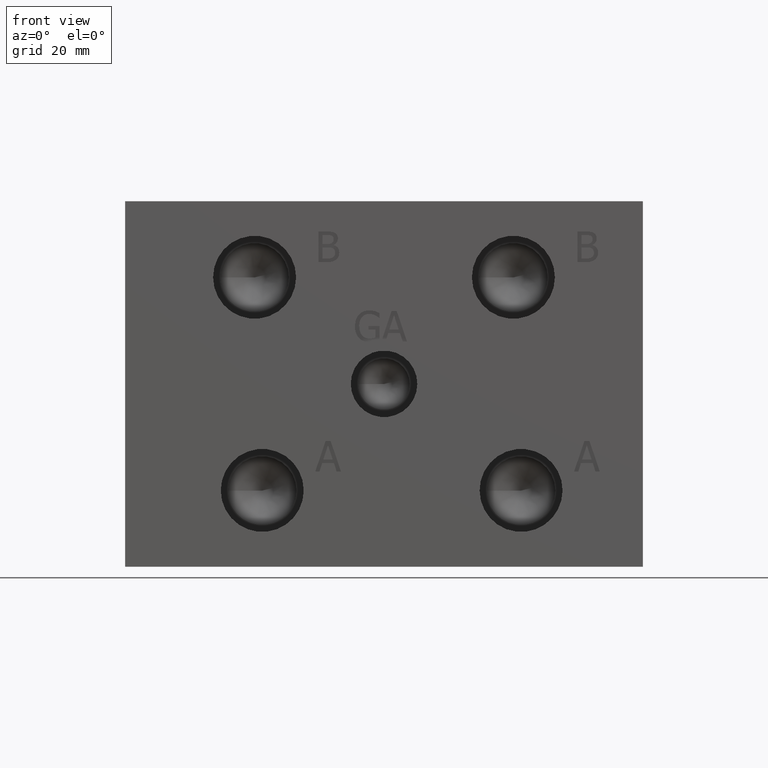
[diagram: clean part render]
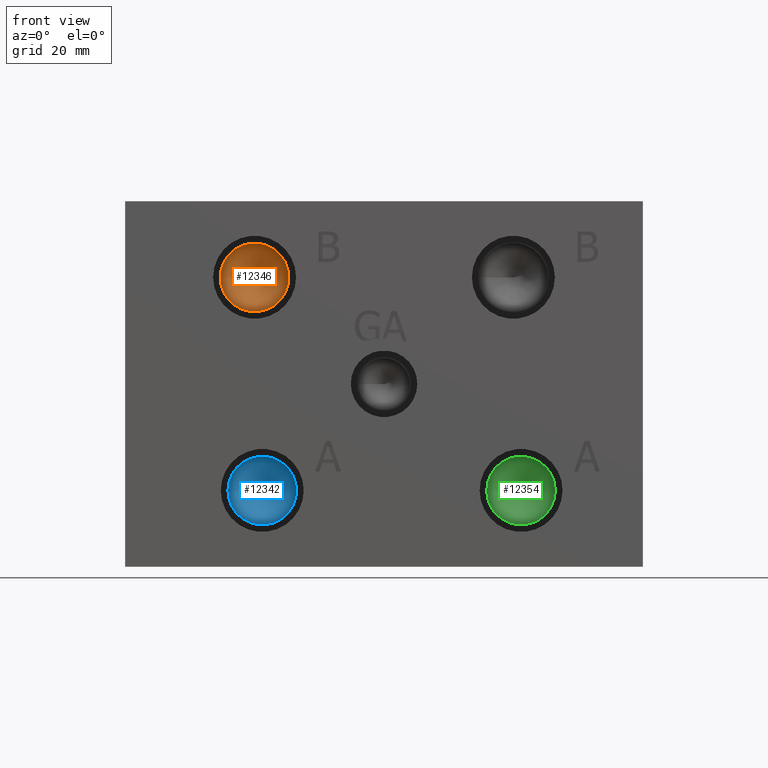
[diagram: same view with three faces highlighted in distinct colors, each labeled with its STEP entity id]
A machine part, front view with three faces highlighted in distinct colors.
Their STEP definitions:

[orange] entity #12346 — the highlighted conical surface has half-angle 60 deg.
#43=CONICAL_SURFACE('',#12995,3.57505,1.0471975511966);
#294=CIRCLE('',#12996,7.1501);
#295=CIRCLE('',#12997,7.1501);
#1388=FACE_OUTER_BOUND('',#2098,.T.);
#2098=EDGE_LOOP('',(#10862,#10863,#10864,#10865));
#3266=LINE('',#21259,#4394);
#4394=VECTOR('',#15376,3.57505);
#5906=VERTEX_POINT('',#21255);
#5907=VERTEX_POINT('',#21256);
#5908=VERTEX_POINT('',#21258);
#7597=EDGE_CURVE('',#5906,#5907,#294,.T.);
#7598=EDGE_CURVE('',#5907,#5908,#3266,.T.);
#7599=EDGE_CURVE('',#5907,#5906,#295,.T.);
#10862=ORIENTED_EDGE('',*,*,#7597,.T.);
#10863=ORIENTED_EDGE('',*,*,#7598,.T.);
#10864=ORIENTED_EDGE('',*,*,#7598,.F.);
#10865=ORIENTED_EDGE('',*,*,#7599,.T.);
#12346=ADVANCED_FACE('',(#1388),#43,.F.);
#12995=AXIS2_PLACEMENT_3D('',#21254,#15372,#15373);
#12996=AXIS2_PLACEMENT_3D('',#21257,#15374,#15375);
#12997=AXIS2_PLACEMENT_3D('',#21260,#15377,#15378);
#15372=DIRECTION('center_axis',(0.,-1.,0.));
#15373=DIRECTION('ref_axis',(1.,0.,0.));
#15374=DIRECTION('center_axis',(0.,-1.,0.));
#15375=DIRECTION('ref_axis',(1.,0.,0.));
#15376=DIRECTION('',(0.866025403784439,0.5,1.06057523872491E-16));
#15377=DIRECTION('center_axis',(0.,-1.,0.));
#15378=DIRECTION('ref_axis',(1.,0.,0.));
#21254=CARTESIAN_POINT('Origin',(26.9748,14.2116660798664,60.325));
#21255=CARTESIAN_POINT('',(34.1249,12.14761,60.325));
#21256=CARTESIAN_POINT('',(19.8247,12.14761,60.325));
#21257=CARTESIAN_POINT('Origin',(26.9748,12.14761,60.325));
#21258=CARTESIAN_POINT('',(26.9748,16.2757221597327,60.325));
#21259=CARTESIAN_POINT('',(23.39975,14.2116660798664,60.325));
#21260=CARTESIAN_POINT('Origin',(26.9748,12.14761,60.325));

[blue] entity #12342 — the highlighted conical surface has half-angle 60 deg.
#42=CONICAL_SURFACE('',#12986,3.57505,1.0471975511966);
#289=CIRCLE('',#12987,7.1501);
#290=CIRCLE('',#12988,7.1501);
#1384=FACE_OUTER_BOUND('',#2093,.T.);
#2093=EDGE_LOOP('',(#10844,#10845,#10846,#10847));
#3263=LINE('',#21241,#4391);
#4391=VECTOR('',#15355,3.57505);
#5900=VERTEX_POINT('',#21237);
#5901=VERTEX_POINT('',#21238);
#5902=VERTEX_POINT('',#21240);
#7589=EDGE_CURVE('',#5900,#5901,#289,.T.);
#7590=EDGE_CURVE('',#5901,#5902,#3263,.T.);
#7591=EDGE_CURVE('',#5901,#5900,#290,.T.);
#10844=ORIENTED_EDGE('',*,*,#7589,.T.);
#10845=ORIENTED_EDGE('',*,*,#7590,.T.);
#10846=ORIENTED_EDGE('',*,*,#7590,.F.);
#10847=ORIENTED_EDGE('',*,*,#7591,.T.);
#12342=ADVANCED_FACE('',(#1384),#42,.F.);
#12986=AXIS2_PLACEMENT_3D('',#21236,#15351,#15352);
#12987=AXIS2_PLACEMENT_3D('',#21239,#15353,#15354);
#12988=AXIS2_PLACEMENT_3D('',#21242,#15356,#15357);
#15351=DIRECTION('center_axis',(0.,-1.,0.));
#15352=DIRECTION('ref_axis',(1.,0.,0.));
#15353=DIRECTION('center_axis',(0.,-1.,0.));
#15354=DIRECTION('ref_axis',(1.,0.,0.));
#15355=DIRECTION('',(0.866025403784439,0.5,1.06057523872491E-16));
#15356=DIRECTION('center_axis',(0.,-1.,0.));
#15357=DIRECTION('ref_axis',(1.,0.,0.));
#21236=CARTESIAN_POINT('Origin',(28.575,14.2116660798664,15.875));
#21237=CARTESIAN_POINT('',(35.7251,12.14761,15.875));
#21238=CARTESIAN_POINT('',(21.4249,12.14761,15.875));
#21239=CARTESIAN_POINT('Origin',(28.575,12.14761,15.875));
#21240=CARTESIAN_POINT('',(28.575,16.2757221597327,15.875));
#21241=CARTESIAN_POINT('',(24.99995,14.2116660798664,15.875));
#21242=CARTESIAN_POINT('Origin',(28.575,12.14761,15.875));

[green] entity #12354 — the highlighted conical surface has half-angle 60 deg.
#45=CONICAL_SURFACE('',#13013,3.57505,1.0471975511966);
#304=CIRCLE('',#13014,7.1501);
#305=CIRCLE('',#13015,7.1501);
#1396=FACE_OUTER_BOUND('',#2108,.T.);
#2108=EDGE_LOOP('',(#10898,#10899,#10900,#10901));
#3272=LINE('',#21295,#4400);
#4400=VECTOR('',#15418,3.57505);
#5918=VERTEX_POINT('',#21291);
#5919=VERTEX_POINT('',#21292);
#5920=VERTEX_POINT('',#21294);
#7613=EDGE_CURVE('',#5918,#5919,#304,.T.);
#7614=EDGE_CURVE('',#5919,#5920,#3272,.T.);
#7615=EDGE_CURVE('',#5919,#5918,#305,.T.);
#10898=ORIENTED_EDGE('',*,*,#7613,.T.);
#10899=ORIENTED_EDGE('',*,*,#7614,.T.);
#10900=ORIENTED_EDGE('',*,*,#7614,.F.);
#10901=ORIENTED_EDGE('',*,*,#7615,.T.);
#12354=ADVANCED_FACE('',(#1396),#45,.F.);
#13013=AXIS2_PLACEMENT_3D('',#21290,#15414,#15415);
#13014=AXIS2_PLACEMENT_3D('',#21293,#15416,#15417);
#13015=AXIS2_PLACEMENT_3D('',#21296,#15419,#15420);
#15414=DIRECTION('center_axis',(0.,-1.,0.));
#15415=DIRECTION('ref_axis',(1.,0.,0.));
#15416=DIRECTION('center_axis',(0.,-1.,0.));
#15417=DIRECTION('ref_axis',(1.,0.,0.));
#15418=DIRECTION('',(0.866025403784439,0.5,1.06057523872491E-16));
#15419=DIRECTION('center_axis',(0.,-1.,0.));
#15420=DIRECTION('ref_axis',(1.,0.,0.));
#21290=CARTESIAN_POINT('Origin',(82.55,14.2116660798664,15.875));
#21291=CARTESIAN_POINT('',(89.7001,12.14761,15.875));
#21292=CARTESIAN_POINT('',(75.3999,12.14761,15.875));
#21293=CARTESIAN_POINT('Origin',(82.55,12.14761,15.875));
#21294=CARTESIAN_POINT('',(82.55,16.2757221597327,15.875));
#21295=CARTESIAN_POINT('',(78.97495,14.2116660798664,15.875));
#21296=CARTESIAN_POINT('Origin',(82.55,12.14761,15.875));